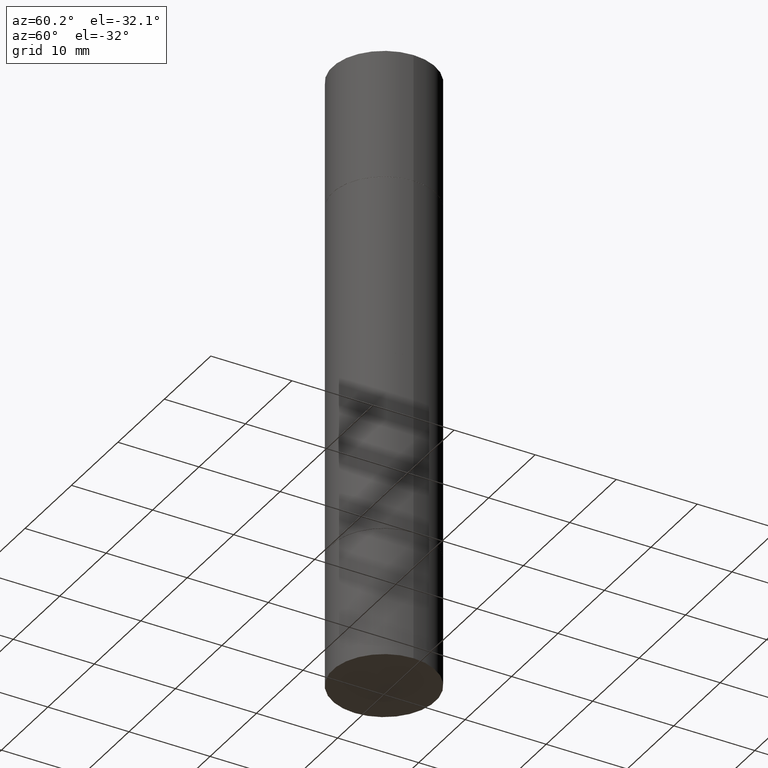
[diagram: clean part render]
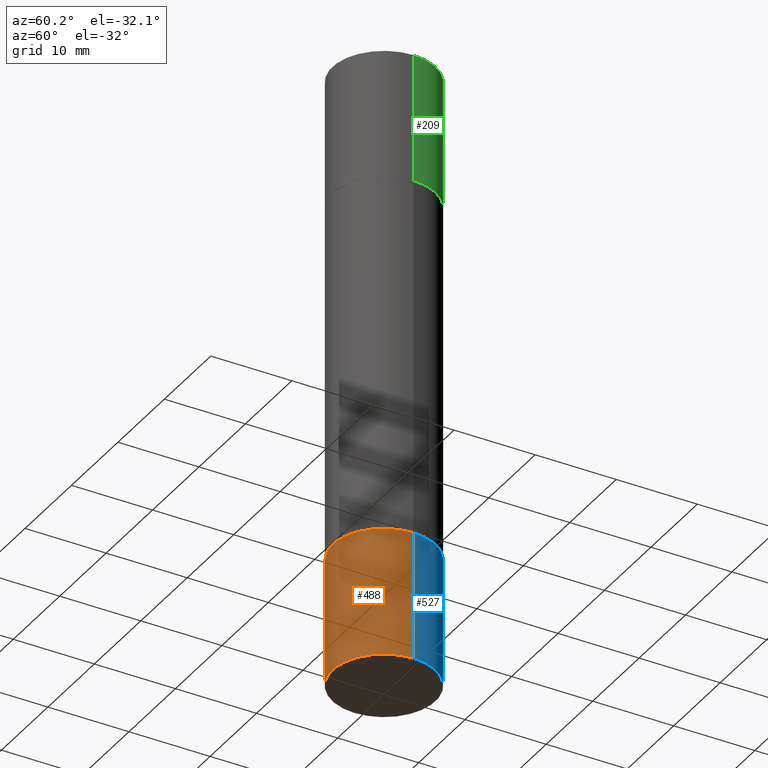
[diagram: same view with three faces highlighted in distinct colors, each labeled with its STEP entity id]
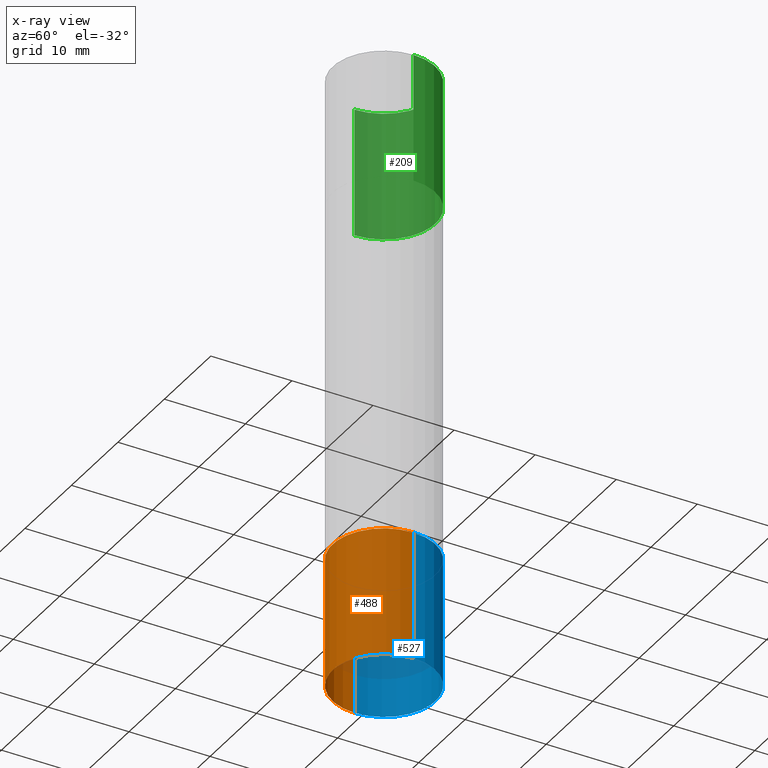
[diagram: x-ray of the same camera — body ghosted, the three highlighted faces saturated]
A machine part, auxiliary view with three faces highlighted in distinct colors.
The next image is the same camera in x-ray (body ghosted, the three faces saturated) — at least one of them is partly hidden behind the body in this view.
Their STEP definitions:

[orange] entity #488 — the highlighted cylindrical surface (partial cylindrical patch) has radius 6.35 mm, axis along (-0, 0, 1).
#15 = AXIS2_PLACEMENT_3D ( 'NONE', #159, #629, #315 ) ;
#21 = CIRCLE ( 'NONE', #540, 0.2500000000000000000 ) ;
#26 = EDGE_LOOP ( 'NONE', ( #84, #614, #664, #122 ) ) ;
#46 = VERTEX_POINT ( 'NONE', #549 ) ;
#51 = CARTESIAN_POINT ( 'NONE',  ( 5.807988414689700538E-29, -8.292268179752471696E-15, -2.375000000000000000 ) ) ;
#62 = DIRECTION ( 'NONE',  ( -2.445468806185136877E-29, 3.491481338843145188E-15, 1.000000000000000000 ) ) ;
#77 = EDGE_CURVE ( 'NONE', #662, #46, #223, .T. ) ;
#84 = ORIENTED_EDGE ( 'NONE', *, *, #530, .F. ) ;
#95 = VERTEX_POINT ( 'NONE', #546 ) ;
#104 = FACE_OUTER_BOUND ( 'NONE', #26, .T. ) ;
#122 = ORIENTED_EDGE ( 'NONE', *, *, #200, .F. ) ;
#126 = EDGE_CURVE ( 'NONE', #95, #662, #21, .T. ) ;
#135 = CARTESIAN_POINT ( 'NONE',  ( 0.2500000000000000000, -1.222018468595100303E-14, -3.000000000000000444 ) ) ;
#159 = CARTESIAN_POINT ( 'NONE',  ( 0.000000000000000000, 0.000000000000000000, 0.000000000000000000 ) ) ;
#200 = EDGE_CURVE ( 'NONE', #447, #46, #671, .T. ) ;
#202 = LINE ( 'NONE', #564, #669 ) ;
#212 = CARTESIAN_POINT ( 'NONE',  ( -0.2500000000000000000, -7.606999258740704349E-15, -2.375000000000000000 ) ) ;
#214 = CARTESIAN_POINT ( 'NONE',  ( 0.2500000000000000000, -1.745740669421566678E-15, 1.219044193948983948E-29 ) ) ;
#223 = LINE ( 'NONE', #214, #576 ) ;
#290 = DIRECTION ( 'NONE',  ( -2.445468806185136877E-29, 3.491481338843145188E-15, 1.000000000000000000 ) ) ;
#315 = DIRECTION ( 'NONE',  ( 1.000000000000000000, -6.982962677686266711E-15, 4.876176775795935793E-29 ) ) ;
#365 = DIRECTION ( 'NONE',  ( -2.445468806185136597E-29, 3.491481338843145583E-15, 1.000000000000000000 ) ) ;
#376 = AXIS2_PLACEMENT_3D ( 'NONE', #51, #365, #518 ) ;
#447 = VERTEX_POINT ( 'NONE', #212 ) ;
#456 = DIRECTION ( 'NONE',  ( 1.000000000000000000, -6.982962677686262766E-15, 0.000000000000000000 ) ) ;
#488 = ADVANCED_FACE ( 'NONE', ( #104 ), #680, .T. ) ;
#509 = CARTESIAN_POINT ( 'NONE',  ( 7.336406418555409790E-29, -1.047444401652943635E-14, -3.000000000000000444 ) ) ;
#518 = DIRECTION ( 'NONE',  ( 1.000000000000000000, -6.982962677686266711E-15, 0.000000000000000000 ) ) ;
#530 = EDGE_CURVE ( 'NONE', #95, #447, #202, .T. ) ;
#540 = AXIS2_PLACEMENT_3D ( 'NONE', #509, #598, #456 ) ;
#546 = CARTESIAN_POINT ( 'NONE',  ( -0.2500000000000000000, -7.606999258740704349E-15, -3.000000000000000444 ) ) ;
#549 = CARTESIAN_POINT ( 'NONE',  ( 0.2500000000000000000, -1.003800884917403837E-14, -2.375000000000000000 ) ) ;
#564 = CARTESIAN_POINT ( 'NONE',  ( -0.2500000000000000000, 1.776356839400250465E-15, -1.229733772563726445E-29 ) ) ;
#576 = VECTOR ( 'NONE', #62, 39.37007874015748143 ) ;
#598 = DIRECTION ( 'NONE',  ( -2.445468806185136597E-29, 3.491481338843145583E-15, 1.000000000000000000 ) ) ;
#614 = ORIENTED_EDGE ( 'NONE', *, *, #126, .T. ) ;
#629 = DIRECTION ( 'NONE',  ( -2.445468806185136597E-29, 3.491481338843145583E-15, 1.000000000000000000 ) ) ;
#662 = VERTEX_POINT ( 'NONE', #135 ) ;
#664 = ORIENTED_EDGE ( 'NONE', *, *, #77, .T. ) ;
#669 = VECTOR ( 'NONE', #290, 39.37007874015748143 ) ;
#671 = CIRCLE ( 'NONE', #376, 0.2500000000000000000 ) ;
#680 = CYLINDRICAL_SURFACE ( 'NONE', #15, 0.2500000000000000000 ) ;

[blue] entity #527 — the highlighted cylindrical surface (partial cylindrical patch) has radius 6.35 mm, axis along (-0, 0, 1).
#19 = ORIENTED_EDGE ( 'NONE', *, *, #374, .F. ) ;
#46 = VERTEX_POINT ( 'NONE', #549 ) ;
#53 = DIRECTION ( 'NONE',  ( 1.000000000000000000, -6.982962677686266711E-15, 4.876176775795935793E-29 ) ) ;
#62 = DIRECTION ( 'NONE',  ( -2.445468806185136877E-29, 3.491481338843145188E-15, 1.000000000000000000 ) ) ;
#77 = EDGE_CURVE ( 'NONE', #662, #46, #223, .T. ) ;
#92 = FACE_OUTER_BOUND ( 'NONE', #246, .T. ) ;
#95 = VERTEX_POINT ( 'NONE', #546 ) ;
#120 = AXIS2_PLACEMENT_3D ( 'NONE', #147, #572, #53 ) ;
#135 = CARTESIAN_POINT ( 'NONE',  ( 0.2500000000000000000, -1.222018468595100303E-14, -3.000000000000000444 ) ) ;
#147 = CARTESIAN_POINT ( 'NONE',  ( 0.000000000000000000, 0.000000000000000000, 0.000000000000000000 ) ) ;
#154 = CIRCLE ( 'NONE', #318, 0.2500000000000000000 ) ;
#158 = DIRECTION ( 'NONE',  ( -2.445468806185136597E-29, 3.491481338843145583E-15, 1.000000000000000000 ) ) ;
#202 = LINE ( 'NONE', #564, #669 ) ;
#212 = CARTESIAN_POINT ( 'NONE',  ( -0.2500000000000000000, -7.606999258740704349E-15, -2.375000000000000000 ) ) ;
#214 = CARTESIAN_POINT ( 'NONE',  ( 0.2500000000000000000, -1.745740669421566678E-15, 1.219044193948983948E-29 ) ) ;
#223 = LINE ( 'NONE', #214, #576 ) ;
#246 = EDGE_LOOP ( 'NONE', ( #621, #506, #19, #348 ) ) ;
#261 = DIRECTION ( 'NONE',  ( 1.000000000000000000, -6.982962677686266711E-15, 0.000000000000000000 ) ) ;
#290 = DIRECTION ( 'NONE',  ( -2.445468806185136877E-29, 3.491481338843145188E-15, 1.000000000000000000 ) ) ;
#311 = CARTESIAN_POINT ( 'NONE',  ( 5.807988414689700538E-29, -8.292268179752471696E-15, -2.375000000000000000 ) ) ;
#318 = AXIS2_PLACEMENT_3D ( 'NONE', #566, #403, #606 ) ;
#342 = AXIS2_PLACEMENT_3D ( 'NONE', #311, #158, #261 ) ;
#348 = ORIENTED_EDGE ( 'NONE', *, *, #77, .F. ) ;
#353 = CYLINDRICAL_SURFACE ( 'NONE', #120, 0.2500000000000000000 ) ;
#374 = EDGE_CURVE ( 'NONE', #46, #447, #400, .T. ) ;
#400 = CIRCLE ( 'NONE', #342, 0.2500000000000000000 ) ;
#403 = DIRECTION ( 'NONE',  ( -2.445468806185136597E-29, 3.491481338843145583E-15, 1.000000000000000000 ) ) ;
#447 = VERTEX_POINT ( 'NONE', #212 ) ;
#506 = ORIENTED_EDGE ( 'NONE', *, *, #530, .T. ) ;
#527 = ADVANCED_FACE ( 'NONE', ( #92 ), #353, .T. ) ;
#530 = EDGE_CURVE ( 'NONE', #95, #447, #202, .T. ) ;
#546 = CARTESIAN_POINT ( 'NONE',  ( -0.2500000000000000000, -7.606999258740704349E-15, -3.000000000000000444 ) ) ;
#549 = CARTESIAN_POINT ( 'NONE',  ( 0.2500000000000000000, -1.003800884917403837E-14, -2.375000000000000000 ) ) ;
#564 = CARTESIAN_POINT ( 'NONE',  ( -0.2500000000000000000, 1.776356839400250465E-15, -1.229733772563726445E-29 ) ) ;
#566 = CARTESIAN_POINT ( 'NONE',  ( 7.336406418555409790E-29, -1.047444401652943635E-14, -3.000000000000000444 ) ) ;
#572 = DIRECTION ( 'NONE',  ( -2.445468806185136597E-29, 3.491481338843145583E-15, 1.000000000000000000 ) ) ;
#576 = VECTOR ( 'NONE', #62, 39.37007874015748143 ) ;
#606 = DIRECTION ( 'NONE',  ( 1.000000000000000000, -6.982962677686262766E-15, 0.000000000000000000 ) ) ;
#621 = ORIENTED_EDGE ( 'NONE', *, *, #653, .T. ) ;
#653 = EDGE_CURVE ( 'NONE', #662, #95, #154, .T. ) ;
#662 = VERTEX_POINT ( 'NONE', #135 ) ;
#669 = VECTOR ( 'NONE', #290, 39.37007874015748143 ) ;

[green] entity #209 — the highlighted cylindrical surface (partial cylindrical patch) has radius 6.35 mm, axis along (-0, -0, -1).
#39 = DIRECTION ( 'NONE',  ( 2.445468806185136597E-29, 3.492890411551752677E-15, 1.000000000000000000 ) ) ;
#43 = CARTESIAN_POINT ( 'NONE',  ( 7.336406418555409790E-29, 2.113609062914567177E-18, 1.092739197465705287E-15 ) ) ;
#48 = LINE ( 'NONE', #676, #599 ) ;
#66 = DIRECTION ( 'NONE',  ( -2.445468806185136877E-29, -3.492890411551753071E-15, -1.000000000000000000 ) ) ;
#68 = CIRCLE ( 'NONE', #307, 0.2500000000000000000 ) ;
#98 = AXIS2_PLACEMENT_3D ( 'NONE', #43, #39, #295 ) ;
#128 = EDGE_CURVE ( 'NONE', #503, #650, #68, .T. ) ;
#130 = ORIENTED_EDGE ( 'NONE', *, *, #343, .F. ) ;
#152 = DIRECTION ( 'NONE',  ( -2.445468806185136877E-29, -3.492890411551753071E-15, -1.000000000000000000 ) ) ;
#183 = EDGE_CURVE ( 'NONE', #660, #503, #48, .T. ) ;
#193 = CIRCLE ( 'NONE', #98, 0.2500000000000000000 ) ;
#206 = FACE_OUTER_BOUND ( 'NONE', #207, .T. ) ;
#207 = EDGE_LOOP ( 'NONE', ( #130, #545, #644, #500 ) ) ;
#209 = ADVANCED_FACE ( 'NONE', ( #206 ), #262, .T. ) ;
#213 = CARTESIAN_POINT ( 'NONE',  ( -0.2500000000000000000, 6.257098548958748880E-16, 1.092739197465709232E-15 ) ) ;
#222 = LINE ( 'NONE', #634, #272 ) ;
#250 = CARTESIAN_POINT ( 'NONE',  ( 0.000000000000000000, -1.047655762559234344E-14, -2.999999999999999112 ) ) ;
#254 = CARTESIAN_POINT ( 'NONE',  ( 0.2500000000000000000, -1.743627060358652092E-15, 1.092739197465705287E-15 ) ) ;
#262 = CYLINDRICAL_SURFACE ( 'NONE', #340, 0.2500000000000000000 ) ;
#272 = VECTOR ( 'NONE', #66, 39.37007874015748143 ) ;
#295 = DIRECTION ( 'NONE',  ( 1.000000000000000000, -6.982962677686266711E-15, 0.000000000000000000 ) ) ;
#307 = AXIS2_PLACEMENT_3D ( 'NONE', #553, #347, #469 ) ;
#340 = AXIS2_PLACEMENT_3D ( 'NONE', #250, #464, #666 ) ;
#343 = EDGE_CURVE ( 'NONE', #542, #650, #222, .T. ) ;
#347 = DIRECTION ( 'NONE',  ( 2.445468806185136597E-29, 3.492890411551752677E-15, 1.000000000000000000 ) ) ;
#464 = DIRECTION ( 'NONE',  ( -2.445468806185136597E-29, -3.492890411551752677E-15, -1.000000000000000000 ) ) ;
#469 = DIRECTION ( 'NONE',  ( 1.000000000000000000, -6.982962677686266711E-15, 0.000000000000000000 ) ) ;
#500 = ORIENTED_EDGE ( 'NONE', *, *, #128, .T. ) ;
#503 = VERTEX_POINT ( 'NONE', #508 ) ;
#508 = CARTESIAN_POINT ( 'NONE',  ( 0.2500000000000000000, -3.926683567578497071E-15, -0.6249999999999988898 ) ) ;
#542 = VERTEX_POINT ( 'NONE', #213 ) ;
#545 = ORIENTED_EDGE ( 'NONE', *, *, #571, .F. ) ;
#553 = CARTESIAN_POINT ( 'NONE',  ( 5.807988414689700538E-29, -2.180942898156930788E-15, -0.6249999999999988898 ) ) ;
#571 = EDGE_CURVE ( 'NONE', #660, #542, #193, .T. ) ;
#599 = VECTOR ( 'NONE', #152, 39.37007874015748143 ) ;
#634 = CARTESIAN_POINT ( 'NONE',  ( -0.2500000000000000000, -8.761433126149462132E-15, -2.999999999999999112 ) ) ;
#644 = ORIENTED_EDGE ( 'NONE', *, *, #183, .T. ) ;
#650 = VERTEX_POINT ( 'NONE', #658 ) ;
#658 = CARTESIAN_POINT ( 'NONE',  ( -0.2500000000000000000, 6.257098548958748880E-16, -0.6249999999999988898 ) ) ;
#660 = VERTEX_POINT ( 'NONE', #254 ) ;
#666 = DIRECTION ( 'NONE',  ( 1.000000000000000000, -6.982962677686270655E-15, 0.000000000000000000 ) ) ;
#676 = CARTESIAN_POINT ( 'NONE',  ( 0.2500000000000000000, -1.222229829501391170E-14, -2.999999999999999112 ) ) ;